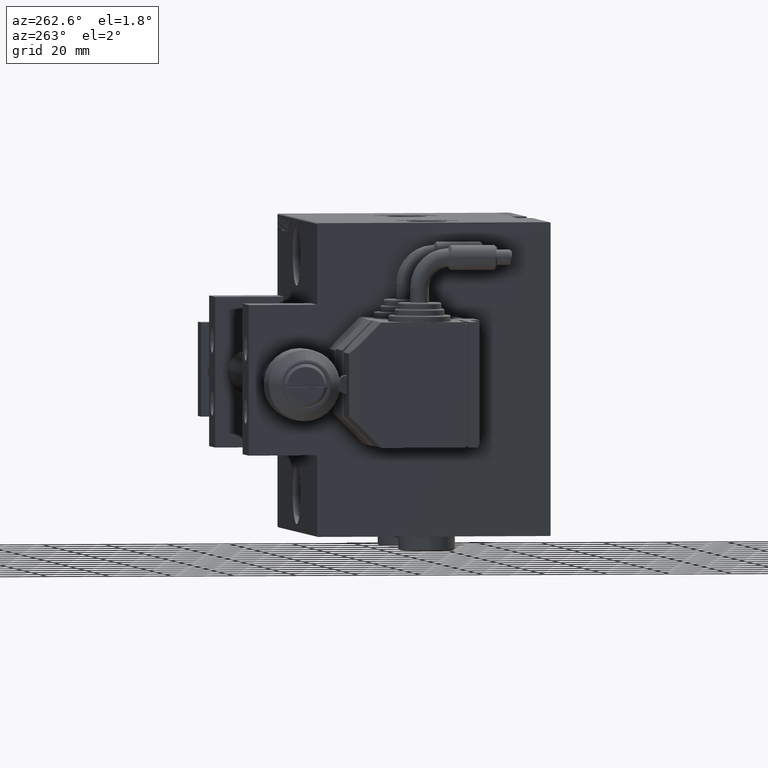
[diagram: clean part render]
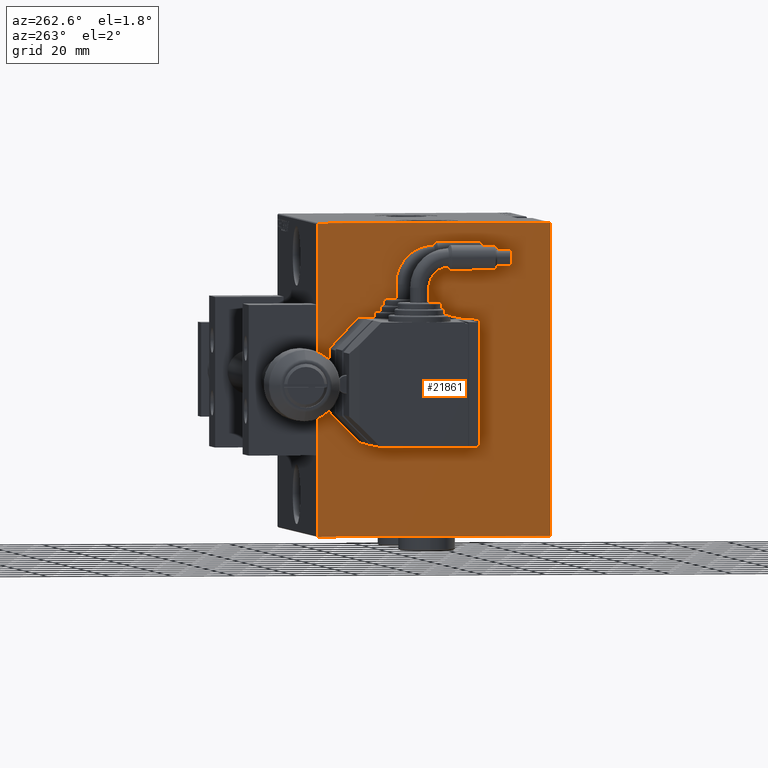
[diagram: same view with one face highlighted and labeled with its STEP entity id]
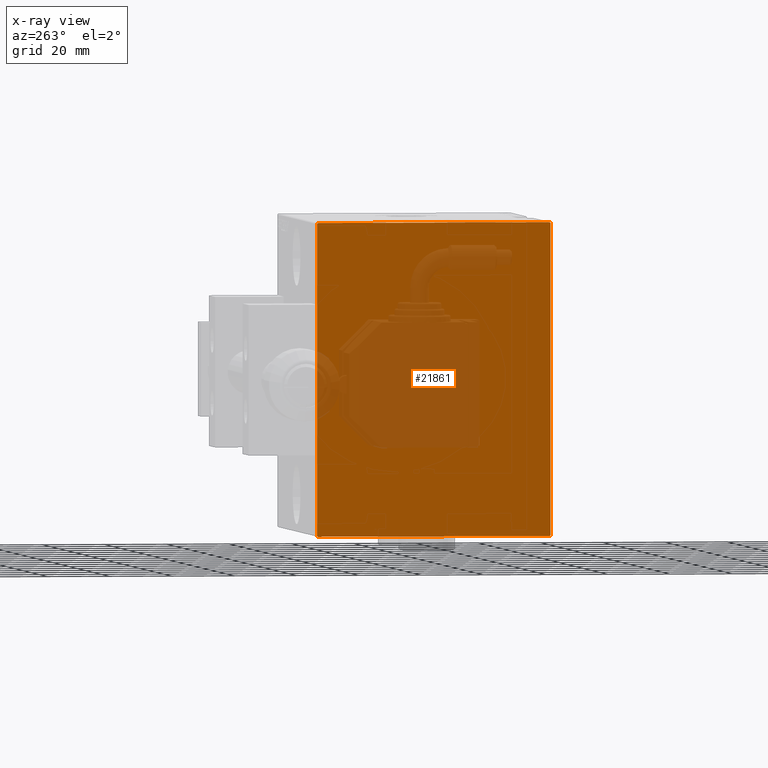
[diagram: x-ray of the same camera — body ghosted, the highlighted face saturated]
A machine part, auxiliary view. The second image highlights one B-rep face of the part: STEP entity #21861.
The next image is the same camera in x-ray: the body ghosted, the highlighted face saturated — about 30% of this face is hidden behind the body in this view.
In plain terms, the highlighted planar face has unit normal (-1, 0, 0).
Its self-contained STEP definition (entity closure, byte-faithful):
#892 = LINE ( 'NONE', #44969, #37070 ) ;
#1655 = CARTESIAN_POINT ( 'NONE',  ( 98.00000000000000000, -37.19999999999997442, -50.00000000000001421 ) ) ;
#1872 = EDGE_CURVE ( 'NONE', #19065, #14707, #892, .T. ) ;
#2619 = DIRECTION ( 'NONE',  ( 0.000000000000000000, 0.000000000000000000, -1.000000000000000000 ) ) ;
#3115 = LINE ( 'NONE', #15050, #12408 ) ;
#4178 = CARTESIAN_POINT ( 'NONE',  ( 98.00000000000000000, -37.50000000000000000, 50.00000000000000000 ) ) ;
#6204 = ORIENTED_EDGE ( 'NONE', *, *, #11573, .T. ) ;
#8078 = CARTESIAN_POINT ( 'NONE',  ( 98.00000000000000000, 37.49999999999999289, 49.70000000000000284 ) ) ;
#8712 = CARTESIAN_POINT ( 'NONE',  ( 98.00000000000000000, 37.19999999999998153, 50.00000000000001421 ) ) ;
#9225 = ORIENTED_EDGE ( 'NONE', *, *, #13165, .T. ) ;
#10567 = DIRECTION ( 'NONE',  ( 0.000000000000000000, -1.000000000000000000, -1.850371707708594563E-16 ) ) ;
#11050 = EDGE_CURVE ( 'NONE', #44992, #49565, #3115, .T. ) ;
#11573 = EDGE_CURVE ( 'NONE', #46373, #20985, #25016, .T. ) ;
#12408 = VECTOR ( 'NONE', #47430, 1000.000000000000114 ) ;
#12932 = EDGE_CURVE ( 'NONE', #33044, #44992, #36888, .T. ) ;
#13035 = CARTESIAN_POINT ( 'NONE',  ( 98.00000000000000000, -37.50000000000000000, -50.00000000000001421 ) ) ;
#13165 = EDGE_CURVE ( 'NONE', #14707, #13879, #35056, .T. ) ;
#13879 = VERTEX_POINT ( 'NONE', #44939 ) ;
#14707 = VERTEX_POINT ( 'NONE', #45041 ) ;
#15050 = CARTESIAN_POINT ( 'NONE',  ( 98.00000000000000000, 43.59999999999956088, -43.60000000000057696 ) ) ;
#15060 = FACE_OUTER_BOUND ( 'NONE', #46107, .T. ) ;
#15318 = VECTOR ( 'NONE', #10567, 1000.000000000000000 ) ;
#18944 = LINE ( 'NONE', #42040, #40176 ) ;
#19065 = VERTEX_POINT ( 'NONE', #22409 ) ;
#20130 = AXIS2_PLACEMENT_3D ( 'NONE', #51072, #42553, #2619 ) ;
#20578 = LINE ( 'NONE', #36401, #47609 ) ;
#20754 = EDGE_CURVE ( 'NONE', #20985, #19065, #25869, .T. ) ;
#20985 = VERTEX_POINT ( 'NONE', #8712 ) ;
#21452 = EDGE_CURVE ( 'NONE', #13879, #33044, #20578, .T. ) ;
#21861 = ADVANCED_FACE ( 'NONE', ( #15060 ), #46425, .T. ) ;
#22330 = VECTOR ( 'NONE', #24756, 1000.000000000000114 ) ;
#22409 = CARTESIAN_POINT ( 'NONE',  ( 98.00000000000000000, -37.19999999999996732, 50.00000000000000000 ) ) ;
#22658 = CARTESIAN_POINT ( 'NONE',  ( 98.00000000000000000, 37.50000000000000711, -49.70000000000000284 ) ) ;
#24756 = DIRECTION ( 'NONE',  ( -0.000000000000000000, -0.7071067811865392461, 0.7071067811865556774 ) ) ;
#25016 = LINE ( 'NONE', #41098, #22330 ) ;
#25869 = LINE ( 'NONE', #41694, #15318 ) ;
#27102 = ORIENTED_EDGE ( 'NONE', *, *, #20754, .T. ) ;
#27235 = DIRECTION ( 'NONE',  ( 0.000000000000000000, -1.387778780781445182E-16, 1.000000000000000000 ) ) ;
#29155 = ORIENTED_EDGE ( 'NONE', *, *, #21452, .T. ) ;
#30642 = DIRECTION ( 'NONE',  ( 0.000000000000000000, 0.000000000000000000, -1.000000000000000000 ) ) ;
#33044 = VERTEX_POINT ( 'NONE', #1655 ) ;
#35056 = LINE ( 'NONE', #4178, #38141 ) ;
#36376 = DIRECTION ( 'NONE',  ( 0.000000000000000000, 1.000000000000000000, 9.251858538542970348E-17 ) ) ;
#36401 = CARTESIAN_POINT ( 'NONE',  ( 98.00000000000000000, -43.59999999999999432, -43.59999999999999432 ) ) ;
#36888 = LINE ( 'NONE', #13035, #49714 ) ;
#37070 = VECTOR ( 'NONE', #45220, 1000.000000000000114 ) ;
#37492 = ORIENTED_EDGE ( 'NONE', *, *, #11050, .T. ) ;
#38141 = VECTOR ( 'NONE', #30642, 1000.000000000000000 ) ;
#40176 = VECTOR ( 'NONE', #27235, 1000.000000000000000 ) ;
#40545 = DIRECTION ( 'NONE',  ( -0.000000000000000000, 0.7071067811865474617, -0.7071067811865474617 ) ) ;
#41098 = CARTESIAN_POINT ( 'NONE',  ( 98.00000000000000000, 43.60000000000042775, 43.59999999999941878 ) ) ;
#41694 = CARTESIAN_POINT ( 'NONE',  ( 98.00000000000000000, 37.49999999999999289, 50.00000000000001421 ) ) ;
#42040 = CARTESIAN_POINT ( 'NONE',  ( 98.00000000000000000, 37.50000000000000711, -50.00000000000000711 ) ) ;
#42146 = ORIENTED_EDGE ( 'NONE', *, *, #12932, .T. ) ;
#42553 = DIRECTION ( 'NONE',  ( 1.000000000000000000, 0.000000000000000000, 0.000000000000000000 ) ) ;
#44569 = ORIENTED_EDGE ( 'NONE', *, *, #48796, .T. ) ;
#44939 = CARTESIAN_POINT ( 'NONE',  ( 98.00000000000000000, -37.50000000000000000, -49.69999999999999574 ) ) ;
#44969 = CARTESIAN_POINT ( 'NONE',  ( 98.00000000000000000, -43.59999999999956088, 43.60000000000057696 ) ) ;
#44992 = VERTEX_POINT ( 'NONE', #48884 ) ;
#45041 = CARTESIAN_POINT ( 'NONE',  ( 98.00000000000000000, -37.50000000000000000, 49.69999999999998153 ) ) ;
#45220 = DIRECTION ( 'NONE',  ( 0.000000000000000000, -0.7071067811865556774, -0.7071067811865392461 ) ) ;
#46107 = EDGE_LOOP ( 'NONE', ( #42146, #37492, #44569, #6204, #27102, #50929, #9225, #29155 ) ) ;
#46373 = VERTEX_POINT ( 'NONE', #8078 ) ;
#46425 = PLANE ( 'NONE',  #20130 ) ;
#47430 = DIRECTION ( 'NONE',  ( -0.000000000000000000, 0.7071067811865556774, 0.7071067811865392461 ) ) ;
#47609 = VECTOR ( 'NONE', #40545, 1000.000000000000114 ) ;
#48796 = EDGE_CURVE ( 'NONE', #49565, #46373, #18944, .T. ) ;
#48884 = CARTESIAN_POINT ( 'NONE',  ( 98.00000000000000000, 37.19999999999998863, -50.00000000000000711 ) ) ;
#49565 = VERTEX_POINT ( 'NONE', #22658 ) ;
#49714 = VECTOR ( 'NONE', #36376, 1000.000000000000000 ) ;
#50929 = ORIENTED_EDGE ( 'NONE', *, *, #1872, .T. ) ;
#51072 = CARTESIAN_POINT ( 'NONE',  ( 98.00000000000000000, 0.000000000000000000, 0.000000000000000000 ) ) ;